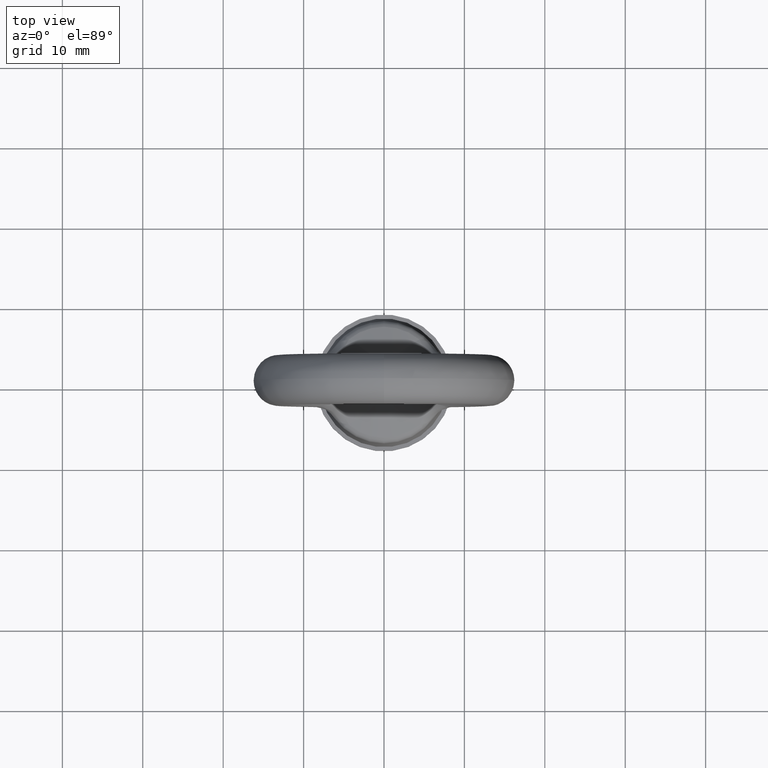
[diagram: clean part render]
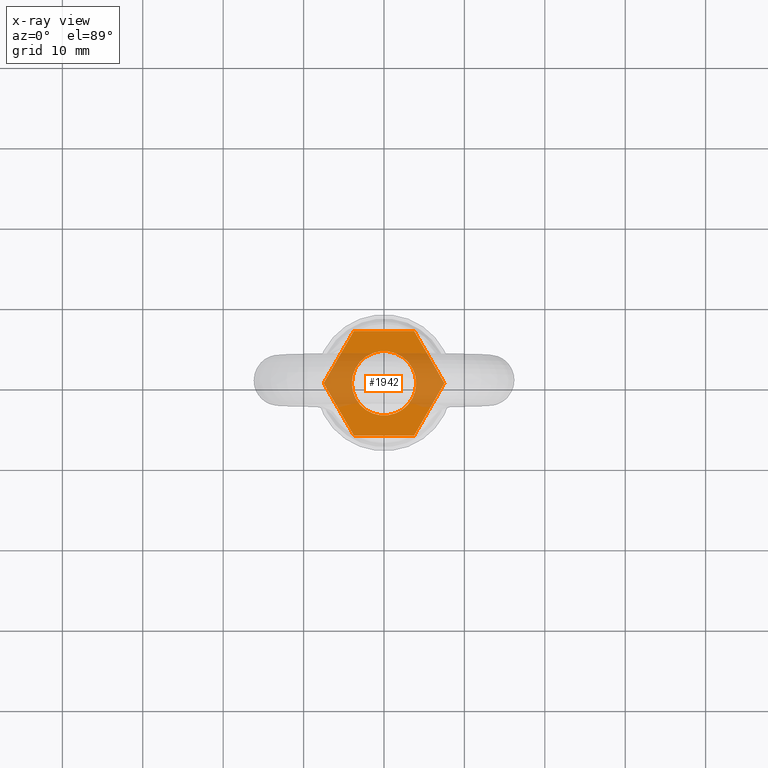
[diagram: x-ray — body ghosted, one internal face saturated and labeled with its STEP entity id]
A machine part, top view, then the same camera in x-ray: the body is ghosted and one INTERNAL B-rep face — a face not visible from any outside direction — is saturated and labeled: STEP entity #1942.
In plain terms, the highlighted planar face has unit normal (0, 0, 1).
Its self-contained STEP definition (entity closure, byte-faithful):
#1776 = VERTEX_POINT ( 'NONE', #5565 ) ;
#1778 = EDGE_CURVE ( 'NONE', #1807, #1776, #5576, .T. ) ;
#1782 = VERTEX_POINT ( 'NONE', #5564 ) ;
#1787 = VERTEX_POINT ( 'NONE', #6363 ) ;
#1790 = EDGE_CURVE ( 'NONE', #1787, #1782, #6487, .T. ) ;
#1800 = VERTEX_POINT ( 'NONE', #6468 ) ;
#1807 = VERTEX_POINT ( 'NONE', #6463 ) ;
#1877 = ORIENTED_EDGE ( 'NONE', *, *, #1790, .T. ) ;
#1878 = ORIENTED_EDGE ( 'NONE', *, *, #1916, .T. ) ;
#1899 = EDGE_LOOP ( 'NONE', ( #1877, #1878, #1939, #1946, #1947, #1943 ) ) ;
#1916 = EDGE_CURVE ( 'NONE', #1782, #1807, #6698, .T. ) ;
#1928 = EDGE_CURVE ( 'NONE', #1984, #1787, #6676, .T. ) ;
#1939 = ORIENTED_EDGE ( 'NONE', *, *, #1778, .T. ) ;
#1942 = ADVANCED_FACE ( 'NONE', ( #6753, #6752 ), #6751, .T. ) ;
#1943 = ORIENTED_EDGE ( 'NONE', *, *, #1928, .T. ) ;
#1944 = EDGE_LOOP ( 'NONE', ( #1945, #1948 ) ) ;
#1945 = ORIENTED_EDGE ( 'NONE', *, *, #1973, .T. ) ;
#1946 = ORIENTED_EDGE ( 'NONE', *, *, #2073, .T. ) ;
#1947 = ORIENTED_EDGE ( 'NONE', *, *, #1986, .T. ) ;
#1948 = ORIENTED_EDGE ( 'NONE', *, *, #7445, .T. ) ;
#1973 = EDGE_CURVE ( 'NONE', #7540, #7539, #6632, .T. ) ;
#1984 = VERTEX_POINT ( 'NONE', #6663 ) ;
#1986 = EDGE_CURVE ( 'NONE', #1800, #1984, #6662, .T. ) ;
#2073 = EDGE_CURVE ( 'NONE', #1776, #1800, #6871, .T. ) ;
#5564 = CARTESIAN_POINT ( 'NONE',  ( 3.752777000000000000, -6.500000000000000000, -20.59999900000000000 ) ) ;
#5565 = CARTESIAN_POINT ( 'NONE',  ( 3.752777000000000000, 6.500000000000000000, -20.59999900000000000 ) ) ;
#5573 = DIRECTION ( 'NONE',  ( -0.4999999250822129700, 0.8660254470382388000, 0.0000000000000000000 ) ) ;
#5574 = VECTOR ( 'NONE', #5573, 1000.000000000000100 ) ;
#5575 = CARTESIAN_POINT ( 'NONE',  ( 7.505552999999999900, 0.0000000000000000000, -20.59999900000000000 ) ) ;
#5576 = LINE ( 'NONE', #5575, #5574 ) ;
#6363 = CARTESIAN_POINT ( 'NONE',  ( -3.752777000000000000, -6.500000000000000000, -20.59999900000000000 ) ) ;
#6463 = CARTESIAN_POINT ( 'NONE',  ( 7.505552999999999900, 0.0000000000000000000, -20.59999900000000000 ) ) ;
#6468 = CARTESIAN_POINT ( 'NONE',  ( -3.752777000000000000, 6.500000000000000000, -20.59999900000000000 ) ) ;
#6484 = DIRECTION ( 'NONE',  ( 1.000000000000000000, 0.0000000000000000000, 0.0000000000000000000 ) ) ;
#6485 = VECTOR ( 'NONE', #6484, 1000.000000000000000 ) ;
#6486 = CARTESIAN_POINT ( 'NONE',  ( -3.752777000000000000, -6.500000000000000000, -20.59999900000000000 ) ) ;
#6487 = LINE ( 'NONE', #6486, #6485 ) ;
#6628 = DIRECTION ( 'NONE',  ( 1.000000000000000000, 0.0000000000000000000, 0.0000000000000000000 ) ) ;
#6629 = DIRECTION ( 'NONE',  ( 0.0000000000000000000, 0.0000000000000000000, -1.000000000000000000 ) ) ;
#6630 = CARTESIAN_POINT ( 'NONE',  ( 0.0000000000000000000, 0.0000000000000000000, -20.59999900000000000 ) ) ;
#6631 = AXIS2_PLACEMENT_3D ( 'NONE', #6630, #6629, #6628 ) ;
#6632 = CIRCLE ( 'NONE', #6631, 4.000000000000000000 ) ;
#6659 = DIRECTION ( 'NONE',  ( -0.4999999250822129700, -0.8660254470382388000, 0.0000000000000000000 ) ) ;
#6660 = VECTOR ( 'NONE', #6659, 1000.000000000000100 ) ;
#6661 = CARTESIAN_POINT ( 'NONE',  ( -3.752777000000000000, 6.500000000000000000, -20.59999900000000000 ) ) ;
#6662 = LINE ( 'NONE', #6661, #6660 ) ;
#6663 = CARTESIAN_POINT ( 'NONE',  ( -7.505552999999999900, 0.0000000000000000000, -20.59999900000000000 ) ) ;
#6676 = LINE ( 'NONE', #6792, #6791 ) ;
#6695 = DIRECTION ( 'NONE',  ( 0.4999999250822129700, 0.8660254470382388000, 0.0000000000000000000 ) ) ;
#6696 = VECTOR ( 'NONE', #6695, 1000.000000000000100 ) ;
#6697 = CARTESIAN_POINT ( 'NONE',  ( 3.752777000000000000, -6.500000000000000000, -20.59999900000000000 ) ) ;
#6698 = LINE ( 'NONE', #6697, #6696 ) ;
#6747 = DIRECTION ( 'NONE',  ( 1.000000000000000000, 0.0000000000000000000, 0.0000000000000000000 ) ) ;
#6748 = DIRECTION ( 'NONE',  ( 0.0000000000000000000, 0.0000000000000000000, 1.000000000000000000 ) ) ;
#6749 = CARTESIAN_POINT ( 'NONE',  ( 0.0000000000000000000, 0.0000000000000000000, -20.59999900000000000 ) ) ;
#6750 = AXIS2_PLACEMENT_3D ( 'NONE', #6749, #6748, #6747 ) ;
#6751 = PLANE ( 'NONE',  #6750 ) ;
#6752 = FACE_BOUND ( 'NONE', #1944, .T. ) ;
#6753 = FACE_OUTER_BOUND ( 'NONE', #1899, .T. ) ;
#6790 = DIRECTION ( 'NONE',  ( 0.4999999250822129700, -0.8660254470382388000, 0.0000000000000000000 ) ) ;
#6791 = VECTOR ( 'NONE', #6790, 1000.000000000000100 ) ;
#6792 = CARTESIAN_POINT ( 'NONE',  ( -7.505552999999999900, 0.0000000000000000000, -20.59999900000000000 ) ) ;
#6833 = DIRECTION ( 'NONE',  ( 1.000000000000000000, 0.0000000000000000000, 0.0000000000000000000 ) ) ;
#6834 = DIRECTION ( 'NONE',  ( 0.0000000000000000000, 0.0000000000000000000, -1.000000000000000000 ) ) ;
#6835 = CARTESIAN_POINT ( 'NONE',  ( 0.0000000000000000000, 0.0000000000000000000, -20.59999900000000000 ) ) ;
#6836 = AXIS2_PLACEMENT_3D ( 'NONE', #6835, #6834, #6833 ) ;
#6837 = CIRCLE ( 'NONE', #6836, 4.000000000000000000 ) ;
#6868 = DIRECTION ( 'NONE',  ( -1.000000000000000000, 0.0000000000000000000, 0.0000000000000000000 ) ) ;
#6869 = VECTOR ( 'NONE', #6868, 1000.000000000000000 ) ;
#6870 = CARTESIAN_POINT ( 'NONE',  ( 3.752777000000000000, 6.500000000000000000, -20.59999900000000000 ) ) ;
#6871 = LINE ( 'NONE', #6870, #6869 ) ;
#7119 = CARTESIAN_POINT ( 'NONE',  ( -4.000000000000000000, 0.0000000000000000000, -20.59999900000000000 ) ) ;
#7120 = CARTESIAN_POINT ( 'NONE',  ( 4.000000000000000000, 4.898425415289509000E-016, -20.59999900000000000 ) ) ;
#7445 = EDGE_CURVE ( 'NONE', #7539, #7540, #6837, .T. ) ;
#7539 = VERTEX_POINT ( 'NONE', #7120 ) ;
#7540 = VERTEX_POINT ( 'NONE', #7119 ) ;